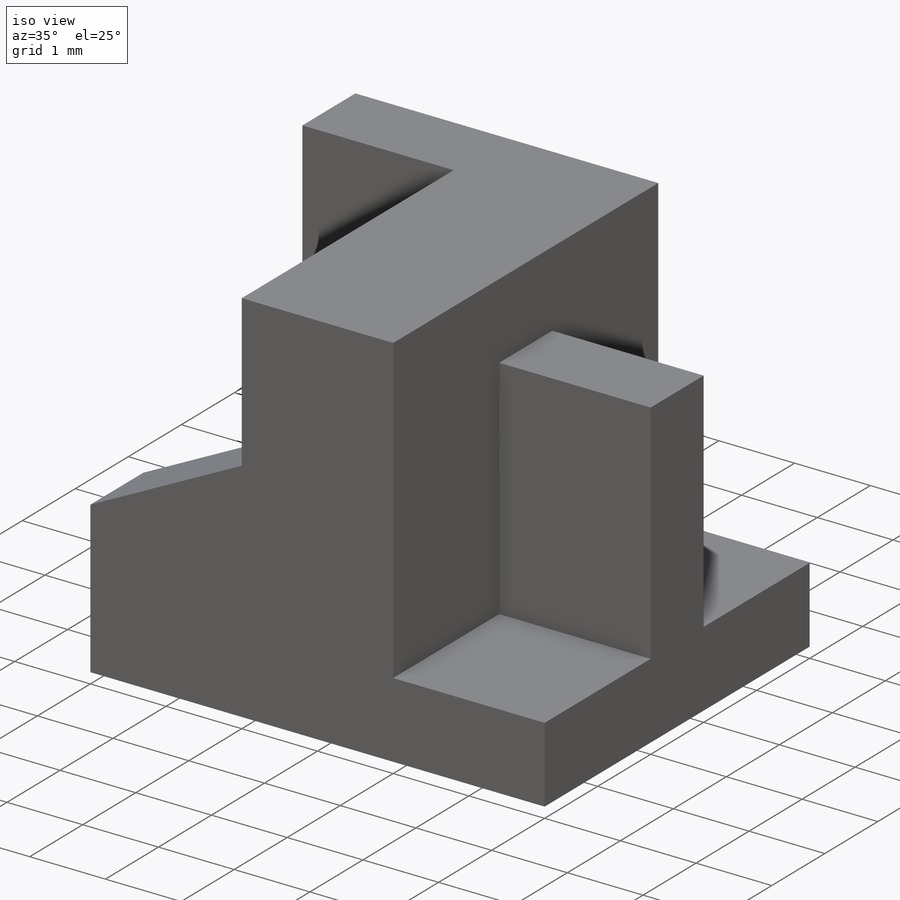
[diagram: iso view]
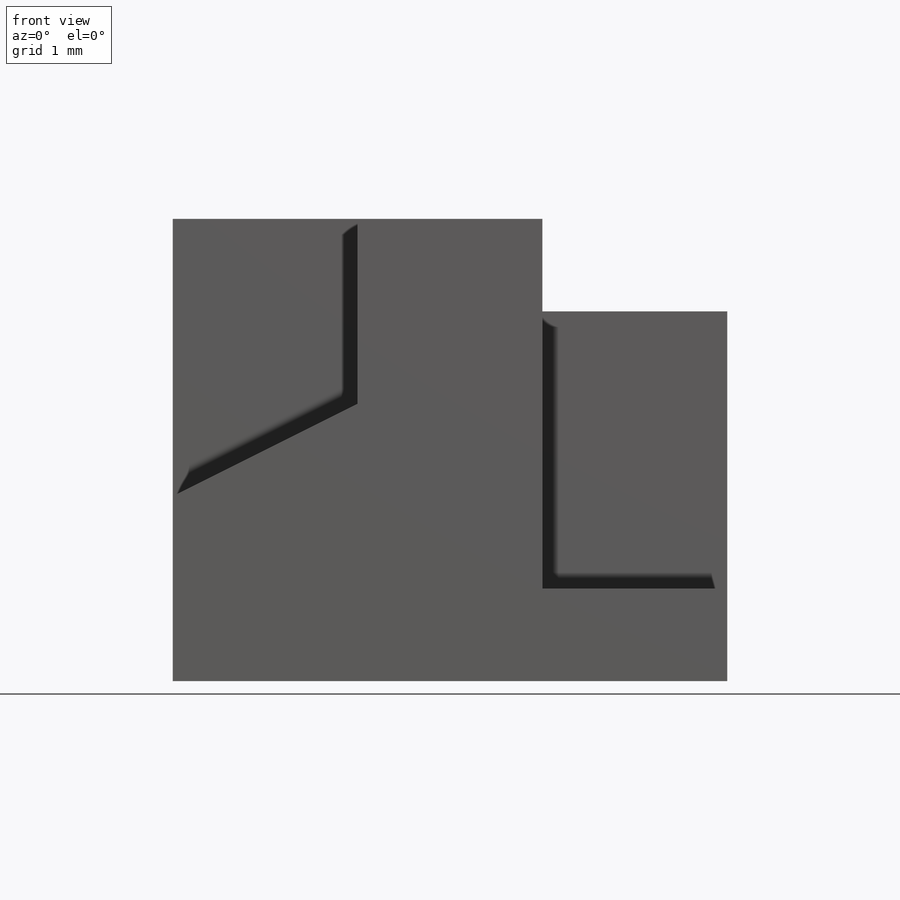
[diagram: front view]
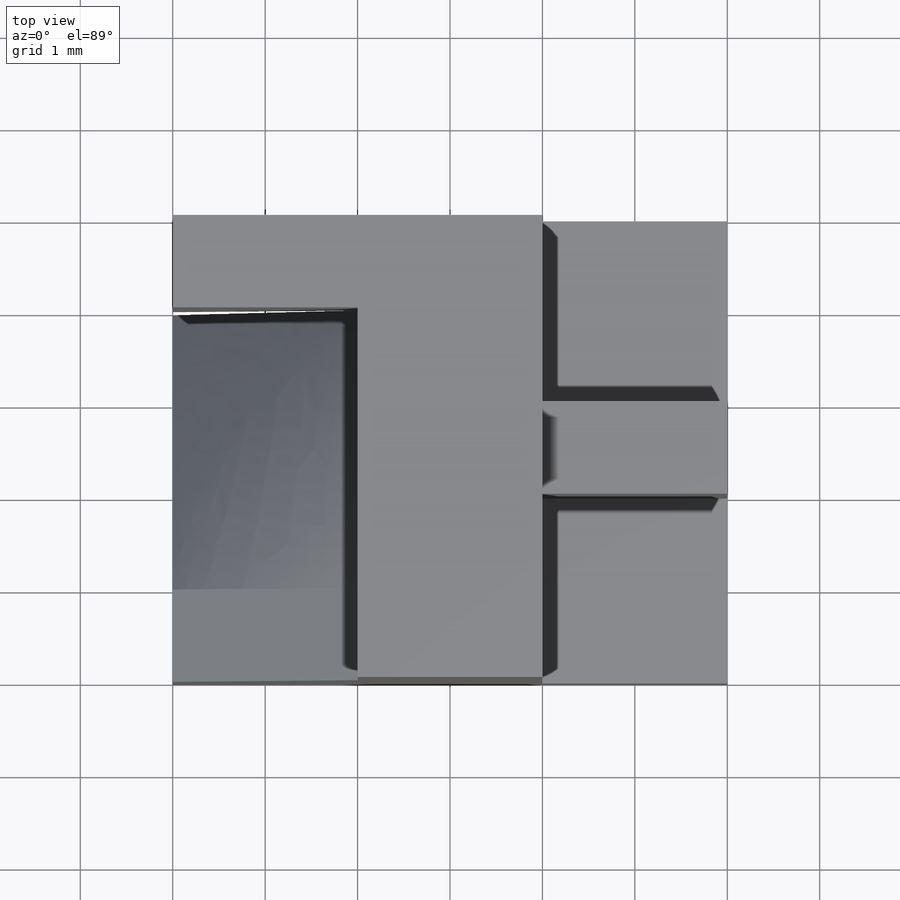
[diagram: top view]
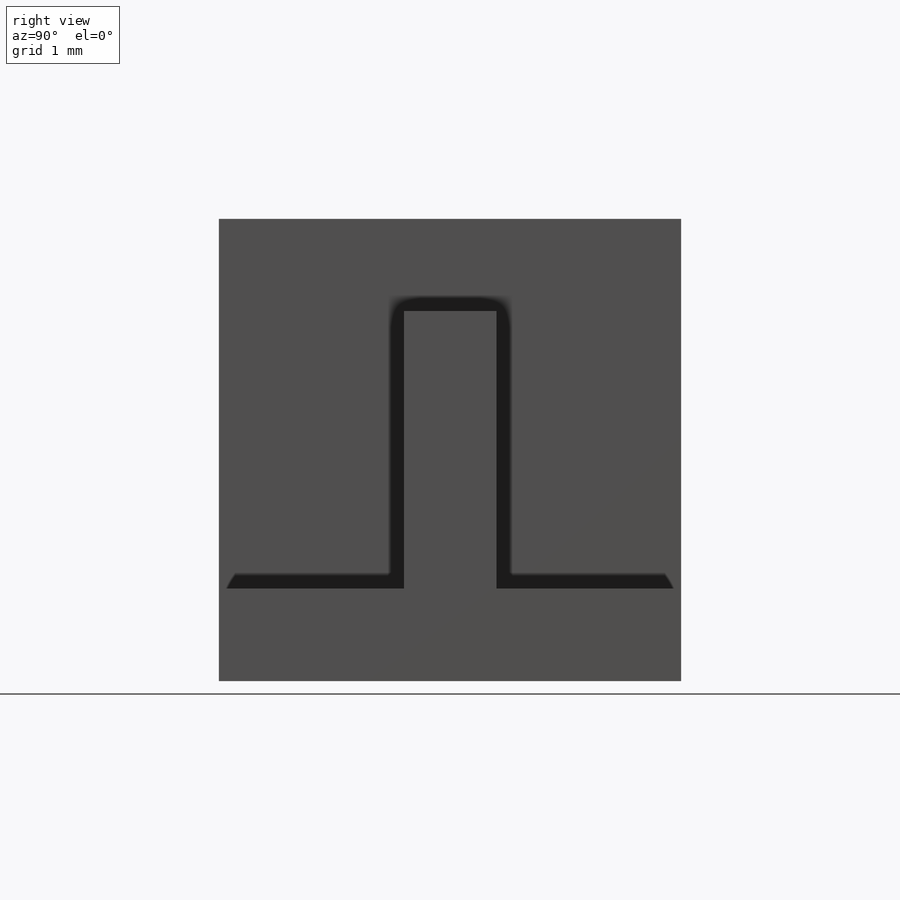
[diagram: right view]
SOLIDWORKS PART (.sldprt)
format: sldprt  version: not decoded by parser v0  size: 205,312 bytes
history: native  units: mm
features: sketch x5, cut_extrude x4, material x1, extrude x1 (+13 scaffold rows collapsed)
feature tree (24):
  scaffold x13  (default folders/planes/origin — collapsed)
  material  "Material <not specified>"
  sketch  "Sketch1"  dims[D1=5.0mm D2=4.0mm D3=2.0mm D4=4.0mm]
  extrude  "Boss-Extrude1"  Depth=5mm
  sketch  "Sketch2"  dims[D1=1.0mm D2=2.0mm]
  cut_extrude  "Cut-Extrude1"  Depth=4mm
  sketch  "Sketch6"  dims[D1=2.0mm D2=2.0mm D3=3.0mm]
  cut_extrude  "Cut-Extrude4"  Depth=4mm
  sketch  "3DSketch1"  dims[c1.D1=1.0mm c1.D2=~2.000006mm c1.D3=2.0mm c2.D2=1.0mm]
  cut_extrude  "Cut-Extrude10"  Depth=4mm
  sketch  "Sketch8"  dims[D1=2.0mm D2=3.0mm D3=2.0mm]
  cut_extrude  "Cut-Extrude11"  Depth=1mm
decode coverage: 10 of 10 modeling features carry decoded parameters
note: ~ marks probable driven/reference dimensions
note: suppression state not decoded; provenance and decode notes live in map.json
